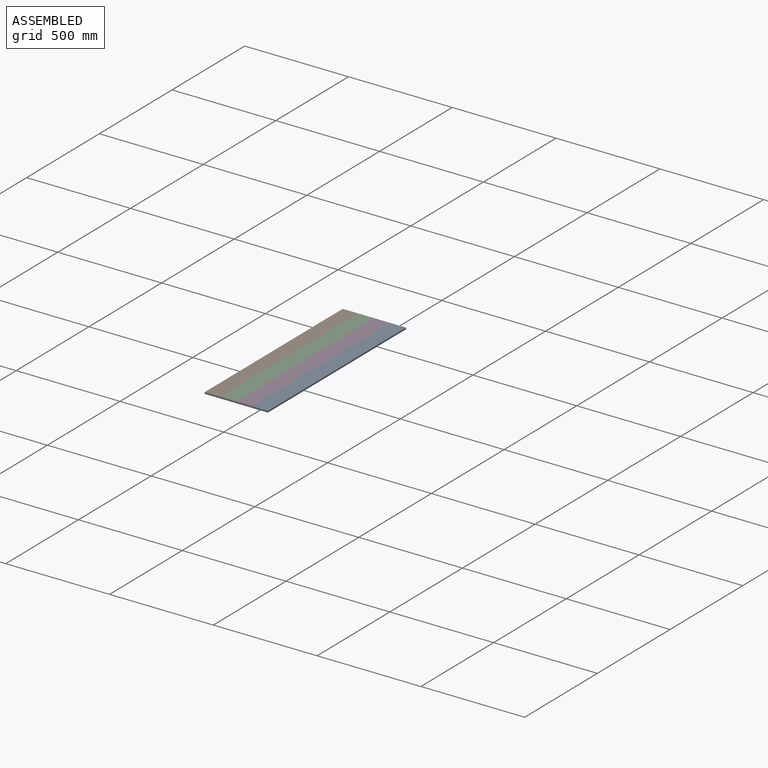
[diagram: assembled view]
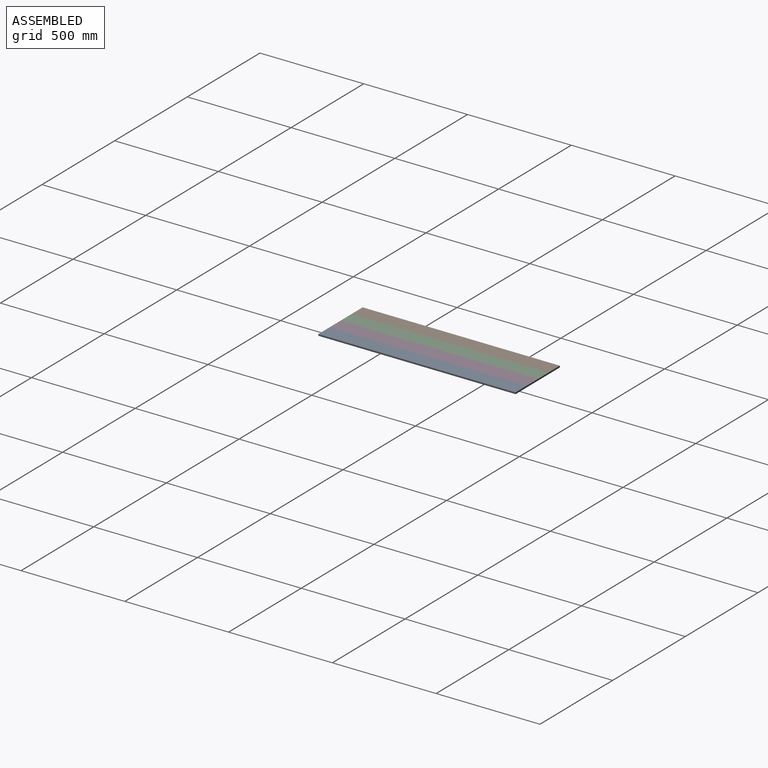
[diagram: assembled view, second angle]
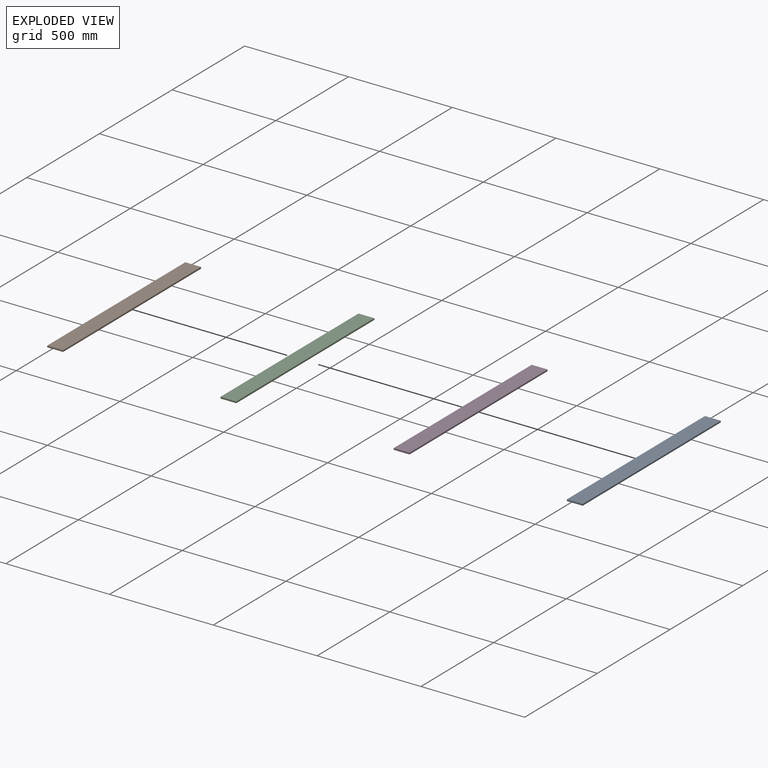
[diagram: exploded view]
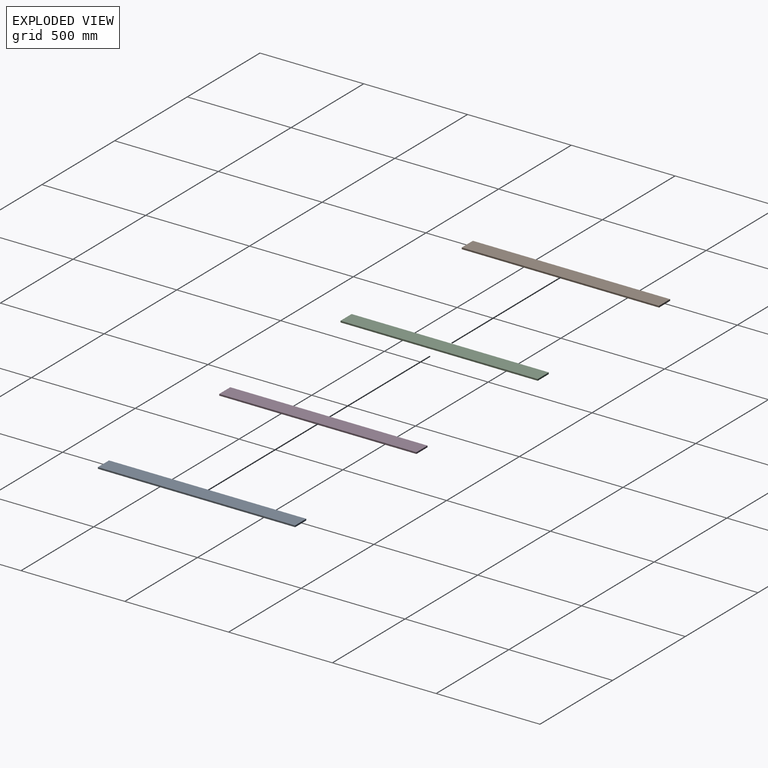
[diagram: exploded view, second angle]
ASSEMBLY  parts=4 mates=3
PART A: 10 faces, bbox 76.2x950x7.6 mm
  f0: plane 950x7.6mm, normal (-1,0,0), area 7220mm2, adj f1,f3,f4,f5
  f1: plane 76.2x7.6mm, normal (0,-1,0), area 579.1mm2, adj f0,f2,f4,f5
  f2: plane 950x7.6mm, normal (1,0,0), area 7216.5mm2, adj f1,f3,f4,f5,f6,f8
  f3: plane 76.2x7.6mm, normal (0,1,0), area 579.1mm2, adj f0,f2,f4,f5
  f4: plane 950x76.2mm, normal (0,0,1), area 72390mm2, adj f0,f1,f2,f3
  f5: plane 950x76.2mm, normal (0,0,-1), area 72390mm2, adj f0,f1,f2,f3
  f6: cylinder r=0.75mm len=19mm, axis (1,0,0), area 89.5mm2, adj f2,f7
  f7: plane 1.5x1.5mm, normal (1,0,0), area 1.8mm2, adj f6
  f8: cylinder r=0.75mm len=19mm, axis (1,0,0), area 89.5mm2, adj f2,f9
  f9: plane 1.5x1.5mm, normal (1,0,0), area 1.8mm2, adj f8
PART B: same geometry as A
PART C: same geometry as A
PART D: same geometry as A
PLACE A rot(axis=(0,-1,0),180deg) t=(557.14,-277.95,180.35)mm
PLACE B t=(252.34,-277.95,172.75)mm fixed
PLACE C rot(axis=(0,1,0),180deg) t=(404.74,-277.95,180.35)mm
PLACE D t=(404.74,-277.95,172.75)mm
MATE fastened D.f0 <-> C.f0  axis (-1,0,0) through (404.74,197.05,176.55)mm
MATE fastened A.f8 <-> D.f8  axis (-1,0,0) through (480.94,37.05,176.55)mm
MATE fastened C.f8 <-> B.f8  axis (-1,0,0) through (328.54,37.05,176.55)mm
